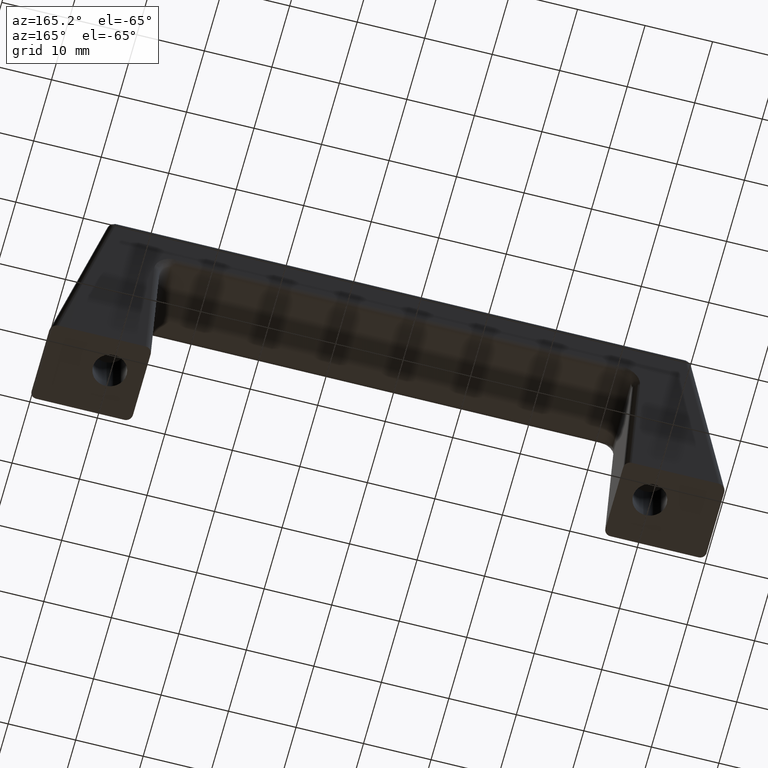
[diagram: clean part render]
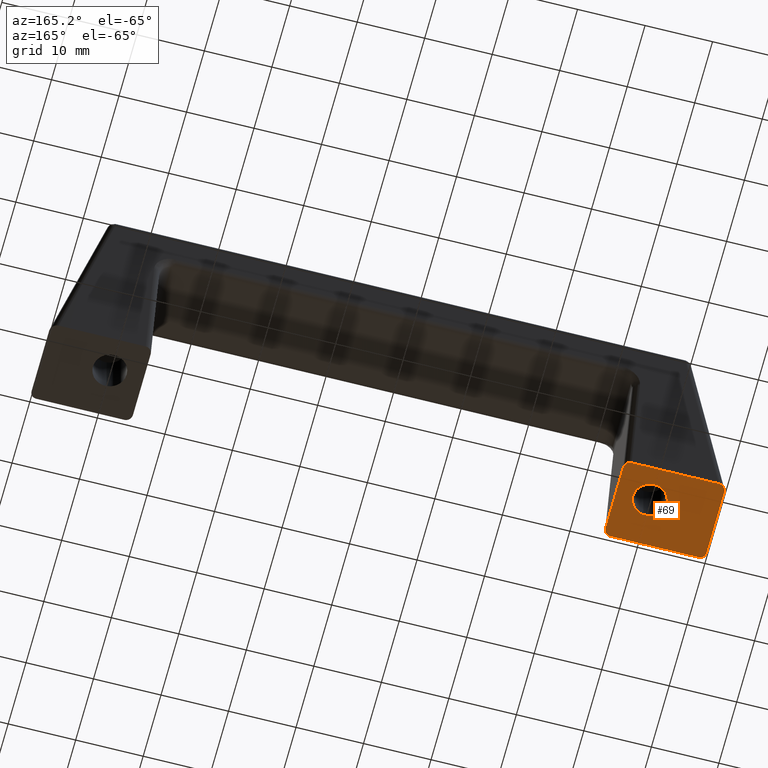
[diagram: same view with one face highlighted and labeled with its STEP entity id]
A machine part, auxiliary view. The second image highlights one B-rep face of the part: STEP entity #69.
In plain terms, the highlighted planar face has unit normal (0, 0, 1).
Its self-contained STEP definition (entity closure, byte-faithful):
#69=ADVANCED_FACE('',(#372,#373),#371,.F.);
#371=PLANE('',#1534);
#372=FACE_OUTER_BOUND('',#1535,.T.);
#373=FACE_BOUND('',#1536,.T.);
#1531=CARTESIAN_POINT('',(-5.15000000000E+01,-1.20000000000E+00,0.00000000000E+00));
#1532=DIRECTION('',(0.00000000000E+00,0.00000000000E+00,1.00000000000E+00));
#1533=DIRECTION('',(1.00000000000E+00,0.00000000000E+00,0.00000000000E+00));
#1534=AXIS2_PLACEMENT_3D('',#1531,#1532,#1533);
#1535=EDGE_LOOP('',(#1710,#1711,#1712,#1713,#1714,#1715,#1716,#1717));
#1536=EDGE_LOOP('',(#1718,#1719,#1720));
#1710=ORIENTED_EDGE('',*,*,#1853,.T.);
#1711=ORIENTED_EDGE('',*,*,#1787,.T.);
#1712=ORIENTED_EDGE('',*,*,#1846,.T.);
#1713=ORIENTED_EDGE('',*,*,#1802,.T.);
#1714=ORIENTED_EDGE('',*,*,#1854,.F.);
#1715=ORIENTED_EDGE('',*,*,#1815,.T.);
#1716=ORIENTED_EDGE('',*,*,#1855,.T.);
#1717=ORIENTED_EDGE('',*,*,#1818,.T.);
#1718=ORIENTED_EDGE('',*,*,#1856,.F.);
#1719=ORIENTED_EDGE('',*,*,#1857,.F.);
#1720=ORIENTED_EDGE('',*,*,#1858,.F.);
#1787=EDGE_CURVE('',#1972,#1973,#1974,.T.);
#1802=EDGE_CURVE('',#2073,#2066,#2074,.T.);
#1815=EDGE_CURVE('',#2160,#2161,#2162,.T.);
#1818=EDGE_CURVE('',#2180,#2181,#2182,.T.);
#1846=EDGE_CURVE('',#1973,#2073,#2363,.T.);
#1853=EDGE_CURVE('',#2181,#1972,#2408,.T.);
#1854=EDGE_CURVE('',#2160,#2066,#2414,.T.);
#1855=EDGE_CURVE('',#2161,#2180,#2420,.T.);
#1856=EDGE_CURVE('',#2426,#2427,#2428,.T.);
#1857=EDGE_CURVE('',#2434,#2426,#2435,.T.);
#1858=EDGE_CURVE('',#2427,#2434,#2441,.T.);
#1972=VERTEX_POINT('',#2545);
#1973=VERTEX_POINT('',#2546);
#1974=(BOUNDED_CURVE() B_SPLINE_CURVE(2,(#2547,#2548,#2549,#2550,#2551),.UNSPECIFIED.,.F.,.F.) B_SPLINE_CURVE_WITH_KNOTS((3,2,3),(0.00000000000E+00,5.00000000000E-01,1.00000000000E+00),.UNSPECIFIED.) CURVE() GEOMETRIC_REPRESENTATION_ITEM() RATIONAL_B_SPLINE_CURVE((1.00000000000E+00,9.23879532511E-01,1.00000000000E+00,9.23879532511E-01,1.00000000000E+00)) REPRESENTATION_ITEM('') );
#2066=VERTEX_POINT('',#2605);
#2073=VERTEX_POINT('',#2609);
#2074=(BOUNDED_CURVE() B_SPLINE_CURVE(2,(#2610,#2611,#2612),.UNSPECIFIED.,.F.,.F.) B_SPLINE_CURVE_WITH_KNOTS((3,3),(0.00000000000E+00,1.00000000000E+00),.UNSPECIFIED.) CURVE() GEOMETRIC_REPRESENTATION_ITEM() RATIONAL_B_SPLINE_CURVE((1.00000000000E+00,7.32356932270E-01,1.00000000000E+00)) REPRESENTATION_ITEM('') );
#2160=VERTEX_POINT('',#2665);
#2161=VERTEX_POINT('',#2666);
#2162=(BOUNDED_CURVE() B_SPLINE_CURVE(2,(#2667,#2668,#2669,#2670,#2671),.UNSPECIFIED.,.F.,.F.) B_SPLINE_CURVE_WITH_KNOTS((3,2,3),(0.00000000000E+00,5.00000000000E-01,1.00000000000E+00),.UNSPECIFIED.) CURVE() GEOMETRIC_REPRESENTATION_ITEM() RATIONAL_B_SPLINE_CURVE((1.00000000000E+00,9.16766121391E-01,1.00000000000E+00,9.16766121391E-01,1.00000000000E+00)) REPRESENTATION_ITEM('') );
#2180=VERTEX_POINT('',#2678);
#2181=VERTEX_POINT('',#2679);
#2182=(BOUNDED_CURVE() B_SPLINE_CURVE(2,(#2680,#2681,#2682),.UNSPECIFIED.,.F.,.F.) B_SPLINE_CURVE_WITH_KNOTS((3,3),(0.00000000000E+00,1.00000000000E+00),.UNSPECIFIED.) CURVE() GEOMETRIC_REPRESENTATION_ITEM() RATIONAL_B_SPLINE_CURVE((1.00000000000E+00,7.07106781187E-01,1.00000000000E+00)) REPRESENTATION_ITEM('') );
#2363=LINE('',#2788,#2789);
#2408=LINE('',#2815,#2816);
#2414=LINE('',#2818,#2819);
#2420=LINE('',#2821,#2822);
#2426=VERTEX_POINT('',#2824);
#2427=VERTEX_POINT('',#2825);
#2428=CIRCLE('',#2829,2.50000000000E+00);
#2434=VERTEX_POINT('',#2830);
#2435=CIRCLE('',#2834,2.50000000000E+00);
#2441=CIRCLE('',#2838,2.50000000000E+00);
#2545=CARTESIAN_POINT('',(-3.50000000000E+01,1.03845373337E+00,0.00000000000E+00));
#2546=CARTESIAN_POINT('',(-3.60000000000E+01,0.00000000000E+00,0.00000000000E+00));
#2547=CARTESIAN_POINT('',(-3.50000000000E+01,1.03845373337E+00,0.00000000000E+00));
#2548=CARTESIAN_POINT('',(-3.50000000000E+01,6.08312113114E-01,0.00000000000E+00));
#2549=CARTESIAN_POINT('',(-3.52928932188E+01,3.04156056557E-01,0.00000000000E+00));
#2550=CARTESIAN_POINT('',(-3.55857864376E+01,0.00000000000E+00,0.00000000000E+00));
#2551=CARTESIAN_POINT('',(-3.60000000000E+01,0.00000000000E+00,0.00000000000E+00));
#2605=CARTESIAN_POINT('',(-5.00000000000E+01,9.62965050090E-01,0.00000000000E+00));
#2609=CARTESIAN_POINT('',(-4.90370297992E+01,0.00000000000E+00,0.00000000000E+00));
#2610=CARTESIAN_POINT('',(-4.90370297992E+01,5.85469200000E-15,0.00000000000E+00));
#2611=CARTESIAN_POINT('',(-5.00000000000E+01,3.59955100000E-14,0.00000000000E+00));
#2612=CARTESIAN_POINT('',(-5.00000000000E+01,9.62965050090E-01,0.00000000000E+00));
#2665=CARTESIAN_POINT('',(-5.00000000000E+01,1.08860533419E+01,0.00000000000E+00));
#2666=CARTESIAN_POINT('',(-4.88860496584E+01,1.20000000000E+01,0.00000000000E+00));
#2667=CARTESIAN_POINT('',(-5.00000000000E+01,1.08860533419E+01,2.77555800000E-14));
#2668=CARTESIAN_POINT('',(-5.00000000000E+01,1.13372995162E+01,2.77555800000E-14));
#2669=CARTESIAN_POINT('',(-4.96686486624E+01,1.16686497581E+01,2.77555800000E-14));
#2670=CARTESIAN_POINT('',(-4.93372973248E+01,1.20000000000E+01,2.77555800000E-14));
#2671=CARTESIAN_POINT('',(-4.88860496584E+01,1.20000000000E+01,2.77555800000E-14));
#2678=CARTESIAN_POINT('',(-3.60000000000E+01,1.20000000000E+01,0.00000000000E+00));
#2679=CARTESIAN_POINT('',(-3.50000000000E+01,1.09615441460E+01,0.00000000000E+00));
#2680=CARTESIAN_POINT('',(-3.60000000000E+01,1.20000000000E+01,0.00000000000E+00));
#2681=CARTESIAN_POINT('',(-3.50000000000E+01,1.20000000000E+01,0.00000000000E+00));
#2682=CARTESIAN_POINT('',(-3.50000000000E+01,1.09615441460E+01,0.00000000000E+00));
#2788=CARTESIAN_POINT('',(-3.60000000000E+01,0.00000000000E+00,0.00000000000E+00));
#2789=VECTOR('',#2790,1.30370297992E+01);
#2790=DIRECTION('',(-1.00000000000E+00,0.00000000000E+00,0.00000000000E+00));
#2815=CARTESIAN_POINT('',(-3.50000000000E+01,1.09615441460E+01,0.00000000000E+00));
#2816=VECTOR('',#2817,9.92309041260E+00);
#2817=DIRECTION('',(0.00000000000E+00,-1.00000000000E+00,0.00000000000E+00));
#2818=CARTESIAN_POINT('',(-5.00000000000E+01,1.08860533419E+01,0.00000000000E+00));
#2819=VECTOR('',#2820,9.92308829184E+00);
#2820=DIRECTION('',(0.00000000000E+00,-1.00000000000E+00,0.00000000000E+00));
#2821=CARTESIAN_POINT('',(-4.88860496584E+01,1.20000000000E+01,0.00000000000E+00));
#2822=VECTOR('',#2823,1.28860496584E+01);
#2823=DIRECTION('',(1.00000000000E+00,0.00000000000E+00,0.00000000000E+00));
#2824=CARTESIAN_POINT('',(-3.97049153212E+01,4.51747607618E+00,8.51649621339E-17));
#2825=CARTESIAN_POINT('',(-4.25000000000E+01,7.00000000000E+00,7.75494920309E-16));
#2826=CARTESIAN_POINT('',(-4.00000000000E+01,7.00000000000E+00,6.38780595463E-17));
#2827=DIRECTION('',(-2.84646744305E-16,-4.24091766816E-17,-1.00000000000E+00));
#2828=DIRECTION('',(-1.00000000000E+00,3.41393580072E-15,2.84646744305E-16));
#2829=AXIS2_PLACEMENT_3D('',#2826,#2827,#2828);
#2830=CARTESIAN_POINT('',(-4.02955146530E+01,9.48247277726E+00,4.27157168004E-17));
#2831=CARTESIAN_POINT('',(-4.00000000000E+01,7.00000000000E+00,6.38780595463E-17));
#2832=DIRECTION('',(-2.84646744305E-16,-4.24091766816E-17,-1.00000000000E+00));
#2833=DIRECTION('',(-1.00000000000E+00,3.41393580072E-15,2.84646744305E-16));
#2834=AXIS2_PLACEMENT_3D('',#2831,#2832,#2833);
#2835=CARTESIAN_POINT('',(-4.00000000000E+01,7.00000000000E+00,6.38780595463E-17));
#2836=DIRECTION('',(-2.84646744305E-16,-4.24091766816E-17,-1.00000000000E+00));
#2837=DIRECTION('',(-1.00000000000E+00,3.41393580072E-15,2.84646744305E-16));
#2838=AXIS2_PLACEMENT_3D('',#2835,#2836,#2837);